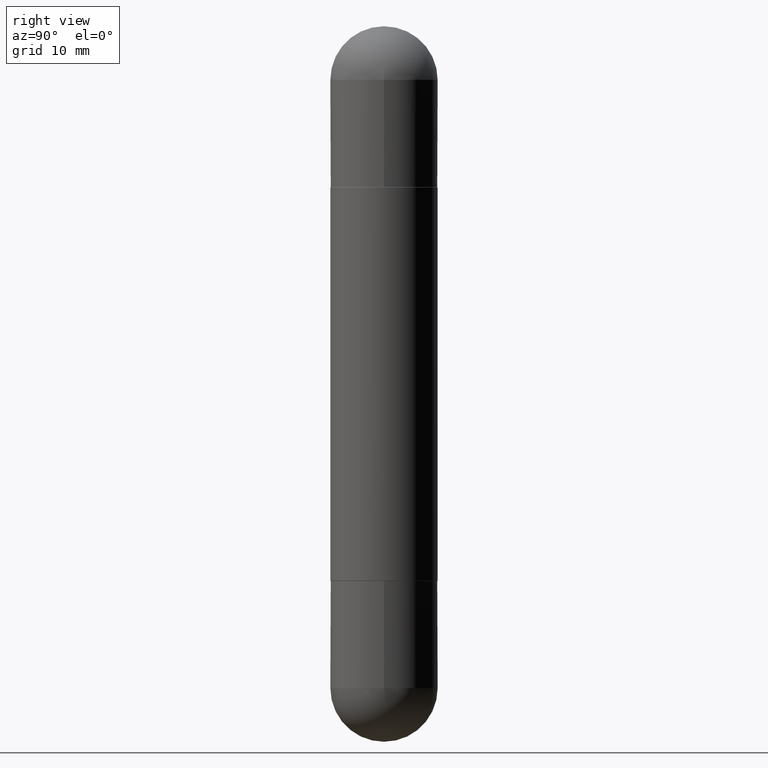
[diagram: clean part render]
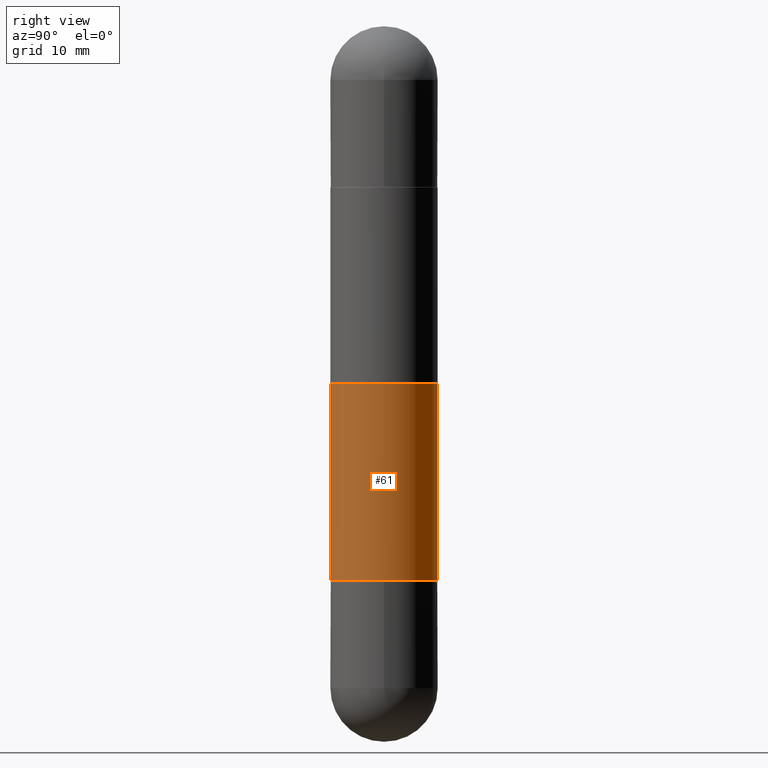
[diagram: same view with one face highlighted and labeled with its STEP entity id]
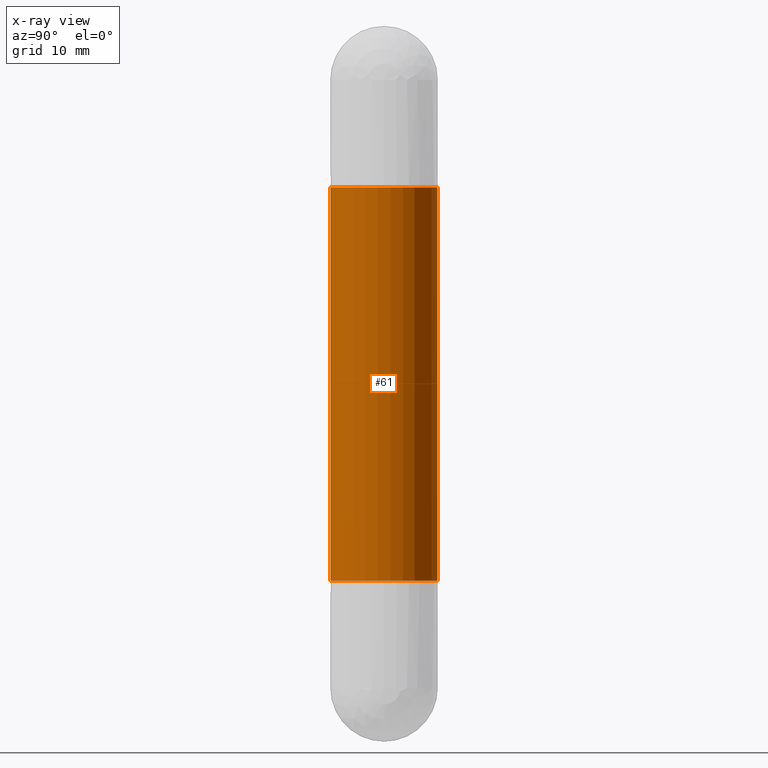
[diagram: x-ray of the same camera — body ghosted, the highlighted face saturated]
A machine part, right view. The second image highlights one B-rep face of the part: STEP entity #61.
The next image is the same camera in x-ray: the body ghosted, the highlighted face saturated — about 0% of this face is hidden behind the body in this view.
In plain terms, the highlighted cylindrical surface (partial cylindrical patch) has radius 4.7625 mm, axis along (-0, 0, -1).
Its self-contained STEP definition (entity closure, byte-faithful):
#15 = CARTESIAN_POINT ( 'NONE',  ( 1.286343374582210880E-15, 0.1874999999999935052, -0.5630000000000001670 ) ) ;
#21 = DIRECTION ( 'NONE',  ( -2.445182329146102675E-29, 3.491891590268302774E-15, -1.000000000000000000 ) ) ;
#26 = CIRCLE ( 'NONE', #306, 0.1875000000000002220 ) ;
#28 = LINE ( 'NONE', #280, #564 ) ;
#36 = VERTEX_POINT ( 'NONE', #15 ) ;
#51 = ORIENTED_EDGE ( 'NONE', *, *, #698, .T. ) ;
#61 = ADVANCED_FACE ( 'NONE', ( #646 ), #407, .T. ) ;
#90 = DIRECTION ( 'NONE',  ( -6.982962677686266711E-15, -1.000000000000000000, -2.913971193241879189E-15 ) ) ;
#145 = AXIS2_PLACEMENT_3D ( 'NONE', #589, #21, #90 ) ;
#146 = CARTESIAN_POINT ( 'NONE',  ( 4.736318171556000237E-29, -6.763794010349701520E-15, -0.5630000000000008331 ) ) ;
#147 = AXIS2_PLACEMENT_3D ( 'NONE', #146, #777, #208 ) ;
#183 = ORIENTED_EDGE ( 'NONE', *, *, #502, .T. ) ;
#197 = ORIENTED_EDGE ( 'NONE', *, *, #487, .F. ) ;
#208 = DIRECTION ( 'NONE',  ( -6.982962677686265922E-15, -1.000000000000000000, -3.642463991552347014E-15 ) ) ;
#209 = CARTESIAN_POINT ( 'NONE',  ( 4.736318171556000237E-29, -6.763794010349701520E-15, -1.936999999999999833 ) ) ;
#246 = VERTEX_POINT ( 'NONE', #804 ) ;
#280 = CARTESIAN_POINT ( 'NONE',  ( 1.286343374582162760E-15, 0.1875000000000001110, -2.500000000000000000 ) ) ;
#306 = AXIS2_PLACEMENT_3D ( 'NONE', #209, #591, #653 ) ;
#401 = CARTESIAN_POINT ( 'NONE',  ( 1.286343374582193722E-15, 0.1874999999999934497, -1.937000000000000499 ) ) ;
#407 = CYLINDRICAL_SURFACE ( 'NONE', #145, 0.1875000000000001110 ) ;
#412 = VERTEX_POINT ( 'NONE', #401 ) ;
#435 = CIRCLE ( 'NONE', #147, 0.1875000000000002220 ) ;
#446 = ORIENTED_EDGE ( 'NONE', *, *, #520, .F. ) ;
#465 = CARTESIAN_POINT ( 'NONE',  ( -1.309305502066175797E-15, -0.1875000000000001110, -2.500000000000001332 ) ) ;
#487 = EDGE_CURVE ( 'NONE', #817, #36, #435, .T. ) ;
#502 = EDGE_CURVE ( 'NONE', #817, #246, #584, .T. ) ;
#520 = EDGE_CURVE ( 'NONE', #36, #412, #28, .T. ) ;
#533 = DIRECTION ( 'NONE',  ( -2.445182329146102955E-29, 3.491891590268302774E-15, -1.000000000000000000 ) ) ;
#564 = VECTOR ( 'NONE', #533, 39.37007874015748143 ) ;
#584 = LINE ( 'NONE', #465, #677 ) ;
#589 = CARTESIAN_POINT ( 'NONE',  ( 0.000000000000000000, 0.000000000000000000, -2.500000000000000444 ) ) ;
#591 = DIRECTION ( 'NONE',  ( -2.445182329146102675E-29, 3.491891590268302774E-15, 1.000000000000000000 ) ) ;
#646 = FACE_OUTER_BOUND ( 'NONE', #669, .T. ) ;
#653 = DIRECTION ( 'NONE',  ( -6.982962677686265922E-15, -1.000000000000000000, 2.913971193241877216E-15 ) ) ;
#657 = DIRECTION ( 'NONE',  ( -2.445182329146102955E-29, 3.491891590268302774E-15, -1.000000000000000000 ) ) ;
#669 = EDGE_LOOP ( 'NONE', ( #446, #197, #183, #51 ) ) ;
#677 = VECTOR ( 'NONE', #657, 39.37007874015748143 ) ;
#698 = EDGE_CURVE ( 'NONE', #246, #412, #26, .T. ) ;
#774 = CARTESIAN_POINT ( 'NONE',  ( -1.309305502066128860E-15, -0.1875000000000069389, -0.5630000000000014992 ) ) ;
#777 = DIRECTION ( 'NONE',  ( 2.445182329146102675E-29, -3.491891590268302774E-15, 1.000000000000000000 ) ) ;
#804 = CARTESIAN_POINT ( 'NONE',  ( -1.309305502066129254E-15, -0.1875000000000069944, -1.936999999999999389 ) ) ;
#817 = VERTEX_POINT ( 'NONE', #774 ) ;